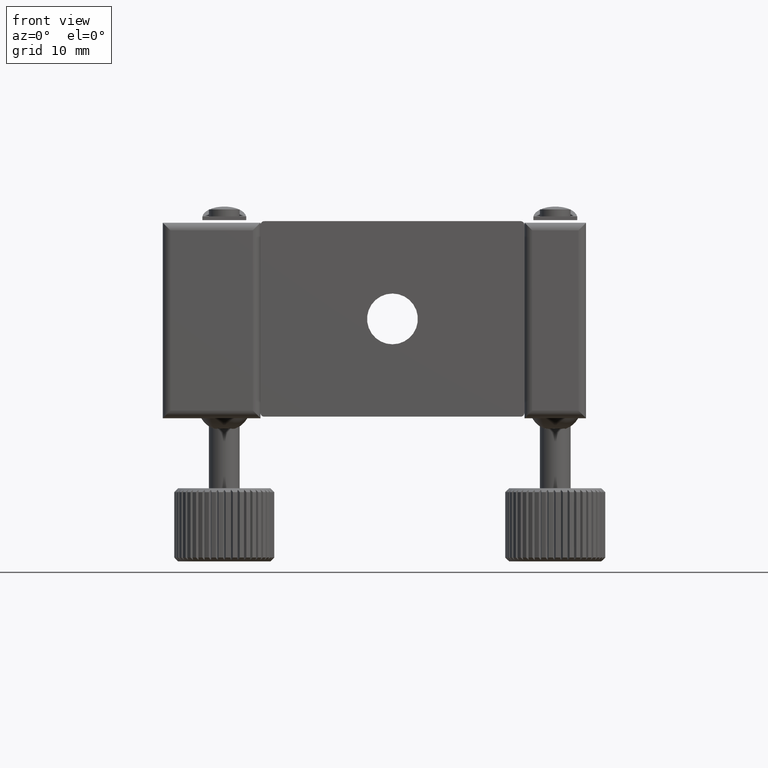
[diagram: clean part render]
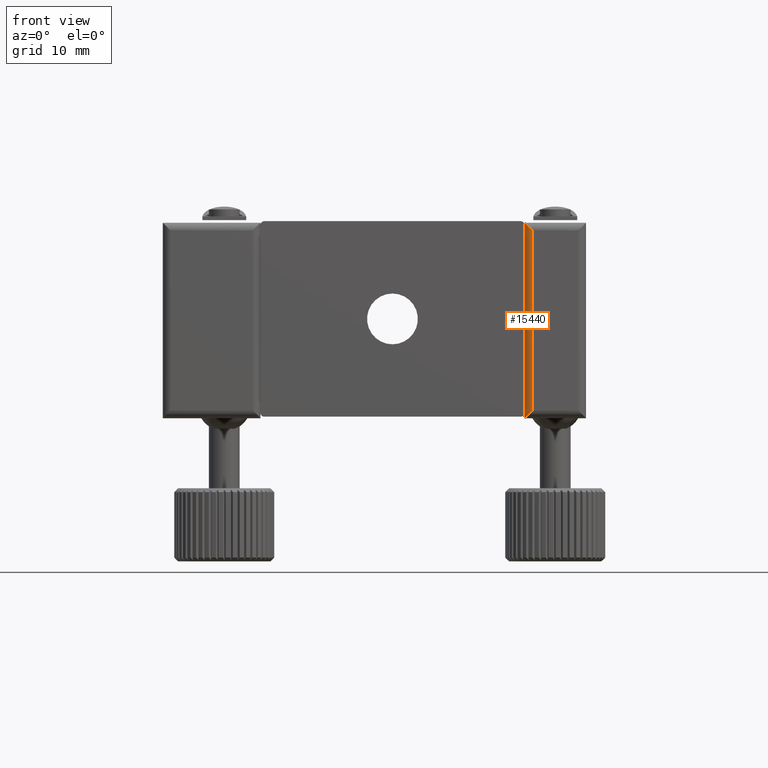
[diagram: same view with one face highlighted and labeled with its STEP entity id]
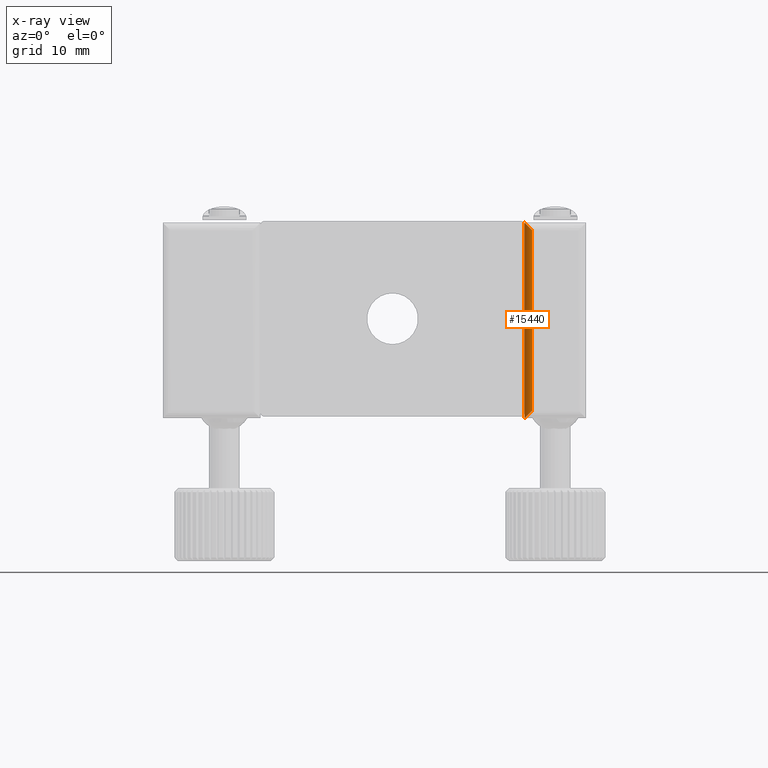
[diagram: x-ray of the same camera — body ghosted, the highlighted face saturated]
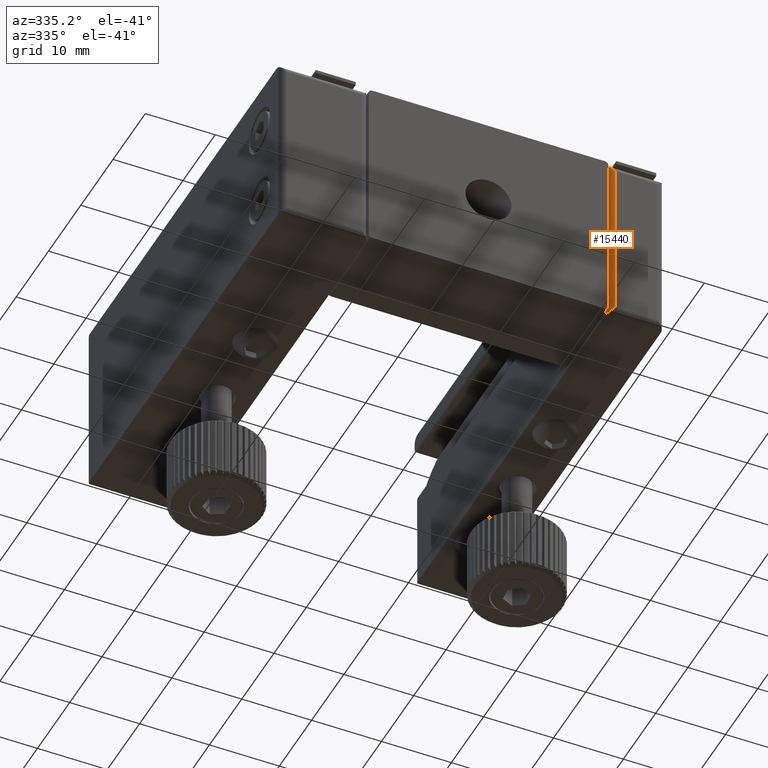
[diagram: same view with one face highlighted and labeled with its STEP entity id]
A machine part, front view. The second image highlights one B-rep face of the part: STEP entity #15440.
The next image is the same camera in x-ray: the body ghosted, the highlighted face saturated — about 0% of this face is hidden behind the body in this view.
A second angle (auxiliary view) of the same face is appended — the face is thin or edge-on in the first view.
In plain terms, the highlighted cylindrical surface (edge-blend (fillet) strip) has radius 1 mm, axis along (0, 0, 1).
Its self-contained STEP definition (entity closure, byte-faithful):
#2763 = CARTESIAN_POINT ( 'NONE',  ( 11.66750972762645900, -8.836669548926357400, -11.89999999999999300 ) ) ;
#2765 = CARTESIAN_POINT ( 'NONE',  ( 11.66750972762645900, -8.836669548926357400, 11.49999999999998900 ) ) ;
#2766 = CARTESIAN_POINT ( 'NONE',  ( 10.66750972762645800, -7.836669548926349400, -12.90000000000000200 ) ) ;
#2768 = CARTESIAN_POINT ( 'NONE',  ( 10.66750972762645800, -7.836669548926349400, 12.49999999999999600 ) ) ;
#4460 =( BOUNDED_CURVE ( )  B_SPLINE_CURVE ( 3, ( #6490, #6491, #6496, #6497 ),
 .UNSPECIFIED., .F., .F. ) 
 B_SPLINE_CURVE_WITH_KNOTS ( ( 4, 4 ),
 ( 1.570796326794893200, 3.141592653589800200 ),
 .UNSPECIFIED. ) 
 CURVE ( )  GEOMETRIC_REPRESENTATION_ITEM ( )  RATIONAL_B_SPLINE_CURVE ( ( 1.000000000000000000, 0.8047378541243626100, 0.8047378541243626100, 1.000000000000000000 ) ) 
 REPRESENTATION_ITEM ( '' )  );
#4461 =( BOUNDED_CURVE ( )  B_SPLINE_CURVE ( 3, ( #6489, #6495, #6502, #6503 ),
 .UNSPECIFIED., .F., .F. ) 
 B_SPLINE_CURVE_WITH_KNOTS ( ( 4, 4 ),
 ( 0.0000000000000000000, 1.570796326794900100 ),
 .UNSPECIFIED. ) 
 CURVE ( )  GEOMETRIC_REPRESENTATION_ITEM ( )  RATIONAL_B_SPLINE_CURVE ( ( 1.000000000000000000, 0.8047378541243641600, 0.8047378541243641600, 1.000000000000000000 ) ) 
 REPRESENTATION_ITEM ( '' )  );
#5201 = LINE ( 'NONE', #6504, #5202 ) ;
#5202 = VECTOR ( 'NONE', #6505, 1000.000000000000000 ) ;
#5203 = LINE ( 'NONE', #6510, #5204 ) ;
#5204 = VECTOR ( 'NONE', #6511, 1000.000000000000000 ) ;
#5766 = FACE_OUTER_BOUND ( 'NONE', #12842, .T. ) ;
#5776 = CYLINDRICAL_SURFACE ( 'NONE', #8423, 1.000000000000000900 ) ;
#6489 = CARTESIAN_POINT ( 'NONE',  ( 10.66750972762645800, -7.836669548926349400, 12.49999999999999600 ) ) ;
#6490 = CARTESIAN_POINT ( 'NONE',  ( 11.66750972762645900, -8.836669548926357400, -11.89999999999999300 ) ) ;
#6491 = CARTESIAN_POINT ( 'NONE',  ( 11.08172328999955000, -8.836669548926357400, -12.48578643762690800 ) ) ;
#6495 = CARTESIAN_POINT ( 'NONE',  ( 10.66750972762645800, -8.422455986553263300, 12.49999999999999800 ) ) ;
#6496 = CARTESIAN_POINT ( 'NONE',  ( 10.66750972762645400, -8.422455986553259800, -12.90000000000000400 ) ) ;
#6497 = CARTESIAN_POINT ( 'NONE',  ( 10.66750972762645800, -7.836669548926349400, -12.90000000000000200 ) ) ;
#6502 = CARTESIAN_POINT ( 'NONE',  ( 11.08172328999955500, -8.836669548926359100, 12.08578643762690100 ) ) ;
#6503 = CARTESIAN_POINT ( 'NONE',  ( 11.66750972762645900, -8.836669548926357400, 11.49999999999998900 ) ) ;
#6504 = CARTESIAN_POINT ( 'NONE',  ( 11.66750972762645900, -8.836669548926357400, -11.89999999999999300 ) ) ;
#6505 = DIRECTION ( 'NONE',  ( 0.0000000000000000000, -1.110223024625156500E-016, -1.000000000000000000 ) ) ;
#6510 = CARTESIAN_POINT ( 'NONE',  ( 10.66750972762645800, -7.836669548926356500, 11.49999999999998900 ) ) ;
#6511 = DIRECTION ( 'NONE',  ( -0.0000000000000000000, 1.110223024625156500E-016, 1.000000000000000000 ) ) ;
#8059 = DIRECTION ( 'NONE',  ( 1.000000000000000000, 0.0000000000000000000, 0.0000000000000000000 ) ) ;
#8061 = DIRECTION ( 'NONE',  ( 0.0000000000000000000, 1.110223024625156500E-016, 1.000000000000000000 ) ) ;
#8063 = CARTESIAN_POINT ( 'NONE',  ( 11.66750972762645900, -7.836669548926356500, -11.89999999999999300 ) ) ;
#8423 = AXIS2_PLACEMENT_3D ( 'NONE', #8063, #8061, #8059 ) ;
#12842 = EDGE_LOOP ( 'NONE', ( #16312, #16313, #16314, #16315 ) ) ;
#13278 = VERTEX_POINT ( 'NONE', #2763 ) ;
#13280 = VERTEX_POINT ( 'NONE', #2765 ) ;
#13281 = VERTEX_POINT ( 'NONE', #2766 ) ;
#13283 = VERTEX_POINT ( 'NONE', #2768 ) ;
#15063 = EDGE_CURVE ( 'NONE', #13278, #13281, #4460, .T. ) ;
#15065 = EDGE_CURVE ( 'NONE', #13283, #13280, #4461, .T. ) ;
#15066 = EDGE_CURVE ( 'NONE', #13280, #13278, #5201, .T. ) ;
#15068 = EDGE_CURVE ( 'NONE', #13281, #13283, #5203, .T. ) ;
#15440 = ADVANCED_FACE ( 'NONE', ( #5766 ), #5776, .T. ) ;
#16312 = ORIENTED_EDGE ( 'NONE', *, *, #15065, .F. ) ;
#16313 = ORIENTED_EDGE ( 'NONE', *, *, #15068, .F. ) ;
#16314 = ORIENTED_EDGE ( 'NONE', *, *, #15063, .F. ) ;
#16315 = ORIENTED_EDGE ( 'NONE', *, *, #15066, .F. ) ;